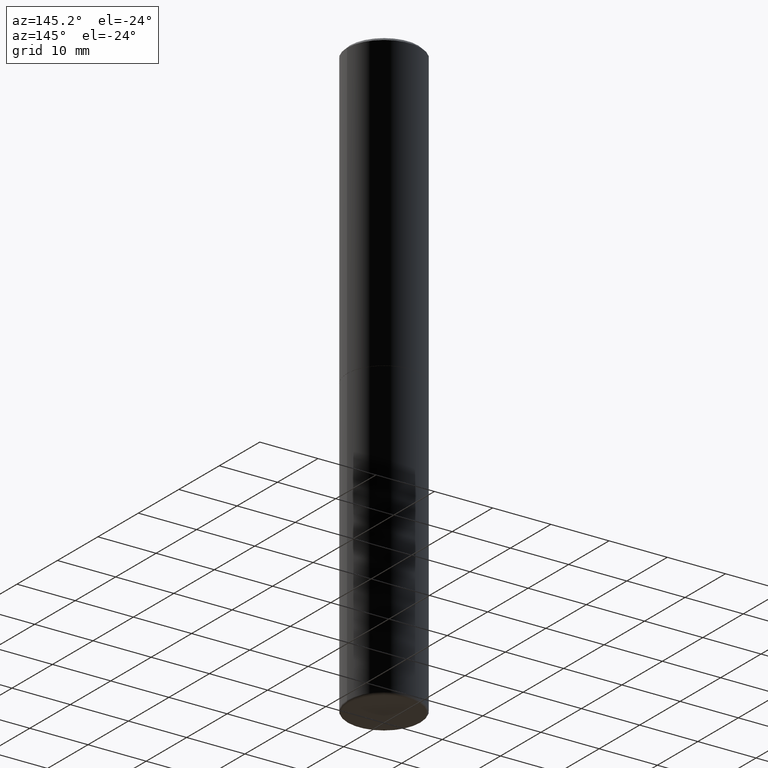
[diagram: clean part render]
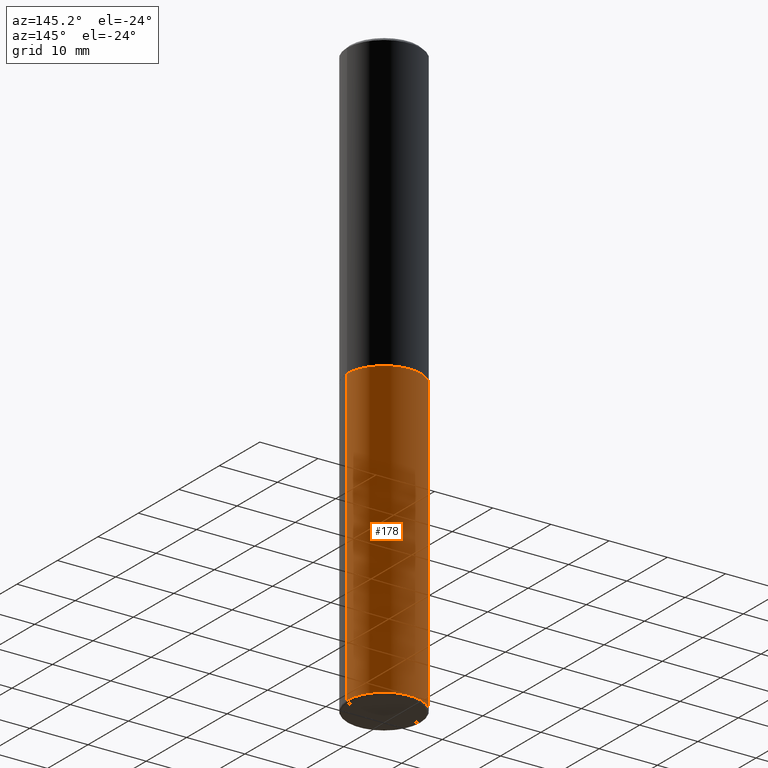
[diagram: same view with one face highlighted and labeled with its STEP entity id]
A machine part, auxiliary view. The second image highlights one B-rep face of the part: STEP entity #178.
In plain terms, the highlighted cylindrical surface (partial cylindrical patch) has radius 6.35 mm, axis along (-0, 0, 1).
Its self-contained STEP definition (entity closure, byte-faithful):
#14 = DIRECTION ( 'NONE',  ( -2.445468806185136597E-29, 3.491481338843145583E-15, 1.000000000000000000 ) ) ;
#19 = CARTESIAN_POINT ( 'NONE',  ( 0.2500000000000000555, -1.565929579888516622E-14, -3.985000571154037274 ) ) ;
#27 = FACE_OUTER_BOUND ( 'NONE', #221, .T. ) ;
#58 = CYLINDRICAL_SURFACE ( 'NONE', #187, 0.2500000000000000000 ) ;
#77 = VERTEX_POINT ( 'NONE', #414 ) ;
#83 = ORIENTED_EDGE ( 'NONE', *, *, #409, .T. ) ;
#108 = DIRECTION ( 'NONE',  ( 1.000000000000000000, -6.982962677686267499E-15, 0.000000000000000000 ) ) ;
#112 = CARTESIAN_POINT ( 'NONE',  ( -0.2500000000000000000, 1.776356839400250465E-15, -1.229733772563726445E-29 ) ) ;
#123 = VERTEX_POINT ( 'NONE', #184 ) ;
#131 = CARTESIAN_POINT ( 'NONE',  ( 0.2500000000000000000, -1.745740669421566678E-15, 1.219044193948983948E-29 ) ) ;
#147 = VECTOR ( 'NONE', #300, 39.37007874015748143 ) ;
#151 = DIRECTION ( 'NONE',  ( -2.445468806185136877E-29, 3.491481338843145188E-15, 1.000000000000000000 ) ) ;
#155 = CIRCLE ( 'NONE', #237, 0.2500000000000000555 ) ;
#170 = DIRECTION ( 'NONE',  ( 1.000000000000000000, -6.982962677686266711E-15, 4.876176775795935793E-29 ) ) ;
#178 = ADVANCED_FACE ( 'NONE', ( #27 ), #58, .T. ) ;
#184 = CARTESIAN_POINT ( 'NONE',  ( -0.2500000000000000555, -8.671902064174693707E-15, -3.985000571154037274 ) ) ;
#187 = AXIS2_PLACEMENT_3D ( 'NONE', #285, #213, #170 ) ;
#194 = VERTEX_POINT ( 'NONE', #19 ) ;
#206 = CARTESIAN_POINT ( 'NONE',  ( 9.745194589387151440E-29, -1.391355512946359954E-14, -3.985000571154037274 ) ) ;
#213 = DIRECTION ( 'NONE',  ( -2.445468806185136597E-29, 3.491481338843145583E-15, 1.000000000000000000 ) ) ;
#215 = EDGE_CURVE ( 'NONE', #194, #77, #240, .T. ) ;
#221 = EDGE_LOOP ( 'NONE', ( #461, #83, #427, #475 ) ) ;
#226 = CARTESIAN_POINT ( 'NONE',  ( -0.2499999999999999722, -8.671902064174693707E-15, -2.000000000000000000 ) ) ;
#237 = AXIS2_PLACEMENT_3D ( 'NONE', #206, #14, #469 ) ;
#240 = LINE ( 'NONE', #131, #147 ) ;
#241 = VECTOR ( 'NONE', #151, 39.37007874015748143 ) ;
#285 = CARTESIAN_POINT ( 'NONE',  ( 0.000000000000000000, 0.000000000000000000, 0.000000000000000000 ) ) ;
#288 = EDGE_CURVE ( 'NONE', #194, #123, #155, .T. ) ;
#300 = DIRECTION ( 'NONE',  ( -2.445468806185136877E-29, 3.491481338843145188E-15, 1.000000000000000000 ) ) ;
#303 = CARTESIAN_POINT ( 'NONE',  ( 4.890937612370273194E-29, -6.982962677686291165E-15, -2.000000000000000000 ) ) ;
#332 = AXIS2_PLACEMENT_3D ( 'NONE', #303, #406, #108 ) ;
#342 = LINE ( 'NONE', #112, #241 ) ;
#344 = CIRCLE ( 'NONE', #332, 0.2499999999999999722 ) ;
#406 = DIRECTION ( 'NONE',  ( -2.445468806185136597E-29, 3.491481338843145583E-15, 1.000000000000000000 ) ) ;
#409 = EDGE_CURVE ( 'NONE', #123, #423, #342, .T. ) ;
#414 = CARTESIAN_POINT ( 'NONE',  ( 0.2499999999999999722, -8.728703347107857054E-15, -2.000000000000000000 ) ) ;
#422 = EDGE_CURVE ( 'NONE', #77, #423, #344, .T. ) ;
#423 = VERTEX_POINT ( 'NONE', #226 ) ;
#427 = ORIENTED_EDGE ( 'NONE', *, *, #422, .F. ) ;
#461 = ORIENTED_EDGE ( 'NONE', *, *, #288, .T. ) ;
#469 = DIRECTION ( 'NONE',  ( 1.000000000000000000, -6.982962677686269077E-15, 0.000000000000000000 ) ) ;
#475 = ORIENTED_EDGE ( 'NONE', *, *, #215, .F. ) ;